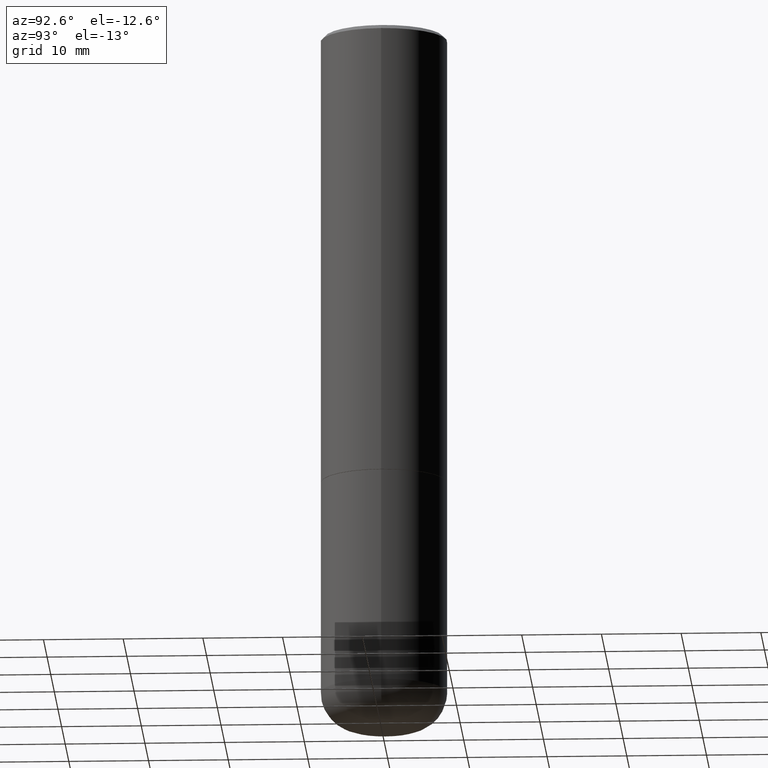
[diagram: clean part render]
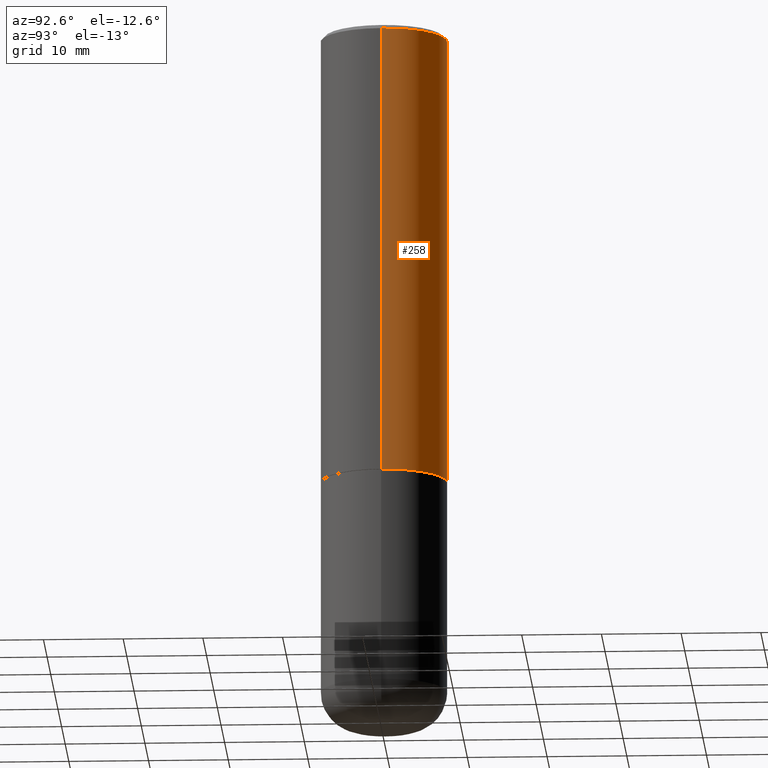
[diagram: same view with one face highlighted and labeled with its STEP entity id]
A machine part, auxiliary view. The second image highlights one B-rep face of the part: STEP entity #258.
In plain terms, the highlighted cylindrical surface (partial cylindrical patch) has radius 7.9375 mm, axis along (-0, 0, 1).
Its self-contained STEP definition (entity closure, byte-faithful):
#25 = CARTESIAN_POINT ( 'NONE',  ( 0.3124999999999998890, -2.213735251080466123E-15, -0.02000000000000006981 ) ) ;
#33 = EDGE_LOOP ( 'NONE', ( #289, #229, #257, #340 ) ) ;
#50 = LINE ( 'NONE', #106, #394 ) ;
#74 = VERTEX_POINT ( 'NONE', #25 ) ;
#84 = CARTESIAN_POINT ( 'NONE',  ( 0.3125000000000002220, -1.003451736783519379E-14, -2.248999999999999666 ) ) ;
#92 = DIRECTION ( 'NONE',  ( 1.000000000000000000, -6.982962677686266711E-15, 0.000000000000000000 ) ) ;
#94 = CARTESIAN_POINT ( 'NONE',  ( 0.000000000000000000, 0.000000000000000000, 0.000000000000000000 ) ) ;
#106 = CARTESIAN_POINT ( 'NONE',  ( -0.3125000000000000000, 2.220446049250313081E-15, -1.537167215704658232E-29 ) ) ;
#107 = VERTEX_POINT ( 'NONE', #84 ) ;
#111 = VERTEX_POINT ( 'NONE', #379 ) ;
#116 = CIRCLE ( 'NONE', #160, 0.3125000000000002220 ) ;
#135 = EDGE_CURVE ( 'NONE', #74, #111, #366, .T. ) ;
#155 = DIRECTION ( 'NONE',  ( -2.445468806185136877E-29, 3.491481338843145188E-15, 1.000000000000000000 ) ) ;
#160 = AXIS2_PLACEMENT_3D ( 'NONE', #186, #192, #92 ) ;
#180 = CARTESIAN_POINT ( 'NONE',  ( 4.890937612370289799E-31, -6.982962677686315028E-17, -0.02000000000000006981 ) ) ;
#182 = VECTOR ( 'NONE', #155, 39.37007874015748143 ) ;
#186 = CARTESIAN_POINT ( 'NONE',  ( 5.499859345110371740E-29, -7.852341531058233864E-15, -2.248999999999999666 ) ) ;
#192 = DIRECTION ( 'NONE',  ( -2.445468806185136597E-29, 3.491481338843145583E-15, 1.000000000000000000 ) ) ;
#193 = CARTESIAN_POINT ( 'NONE',  ( 0.3125000000000000000, -2.182175836776958347E-15, 1.523805242436230075E-29 ) ) ;
#202 = CARTESIAN_POINT ( 'NONE',  ( -0.3125000000000002220, -1.740639529667230767E-15, -2.248999999999999666 ) ) ;
#218 = AXIS2_PLACEMENT_3D ( 'NONE', #94, #360, #256 ) ;
#225 = CYLINDRICAL_SURFACE ( 'NONE', #218, 0.3125000000000000000 ) ;
#229 = ORIENTED_EDGE ( 'NONE', *, *, #410, .T. ) ;
#254 = DIRECTION ( 'NONE',  ( -2.445468806185136597E-29, 3.491481338843145583E-15, 1.000000000000000000 ) ) ;
#256 = DIRECTION ( 'NONE',  ( 1.000000000000000000, -6.982962677686266711E-15, 4.876176775795936353E-29 ) ) ;
#257 = ORIENTED_EDGE ( 'NONE', *, *, #135, .F. ) ;
#258 = ADVANCED_FACE ( 'NONE', ( #328 ), #225, .T. ) ;
#267 = DIRECTION ( 'NONE',  ( -2.445468806185136877E-29, 3.491481338843145188E-15, 1.000000000000000000 ) ) ;
#281 = EDGE_CURVE ( 'NONE', #107, #74, #387, .T. ) ;
#289 = ORIENTED_EDGE ( 'NONE', *, *, #323, .T. ) ;
#312 = DIRECTION ( 'NONE',  ( 1.000000000000000000, -6.982962677686266711E-15, 0.000000000000000000 ) ) ;
#323 = EDGE_CURVE ( 'NONE', #107, #402, #116, .T. ) ;
#326 = AXIS2_PLACEMENT_3D ( 'NONE', #180, #254, #312 ) ;
#328 = FACE_OUTER_BOUND ( 'NONE', #33, .T. ) ;
#340 = ORIENTED_EDGE ( 'NONE', *, *, #281, .F. ) ;
#360 = DIRECTION ( 'NONE',  ( -2.445468806185136597E-29, 3.491481338843145583E-15, 1.000000000000000000 ) ) ;
#366 = CIRCLE ( 'NONE', #326, 0.3124999999999998890 ) ;
#379 = CARTESIAN_POINT ( 'NONE',  ( -0.3124999999999998890, 2.112346210000094260E-15, -0.02000000000000006981 ) ) ;
#387 = LINE ( 'NONE', #193, #182 ) ;
#394 = VECTOR ( 'NONE', #267, 39.37007874015748143 ) ;
#402 = VERTEX_POINT ( 'NONE', #202 ) ;
#410 = EDGE_CURVE ( 'NONE', #402, #111, #50, .T. ) ;